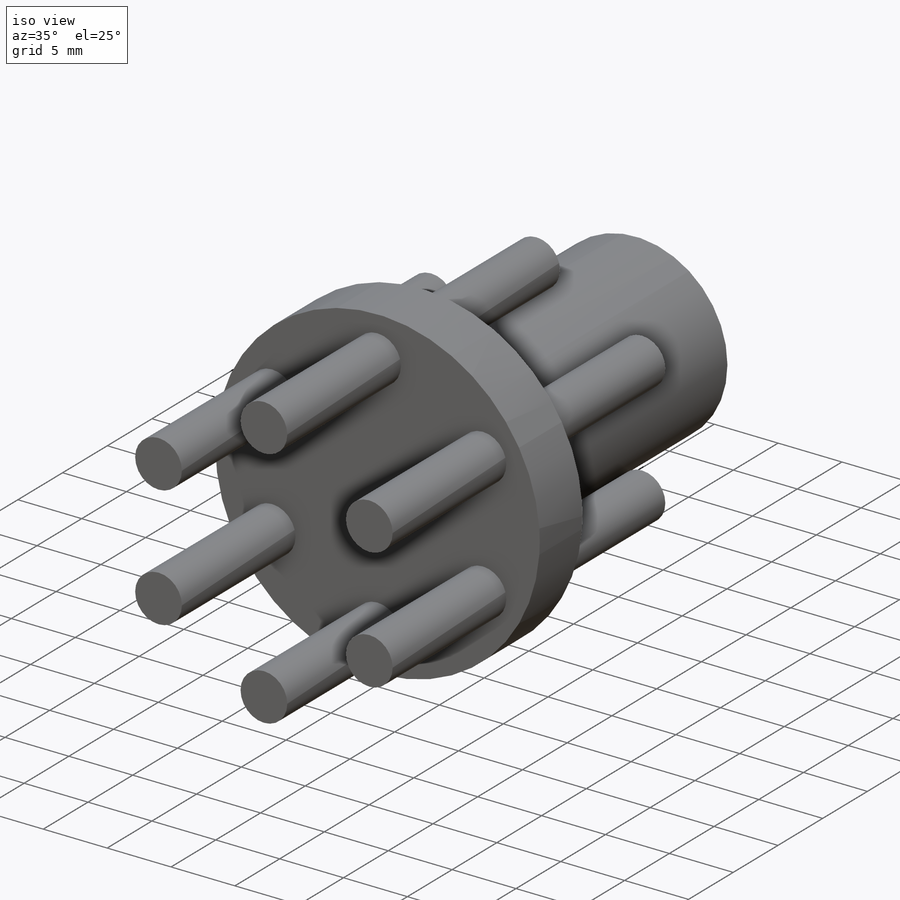
[diagram: iso view]
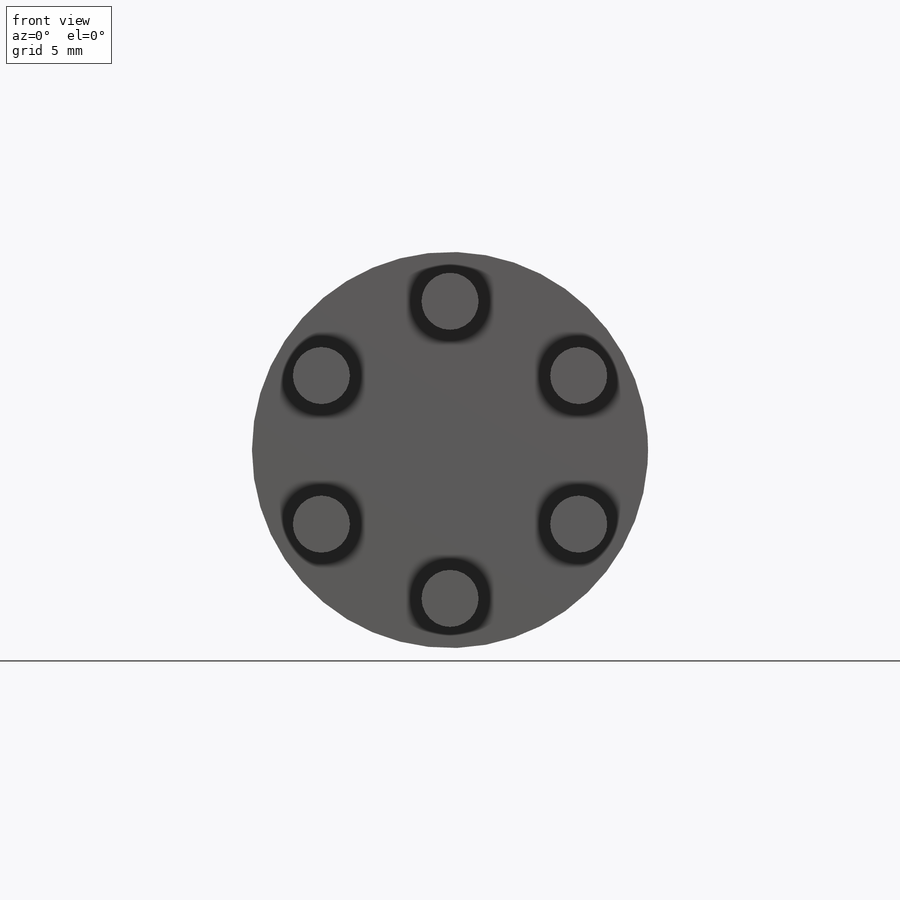
[diagram: front view]
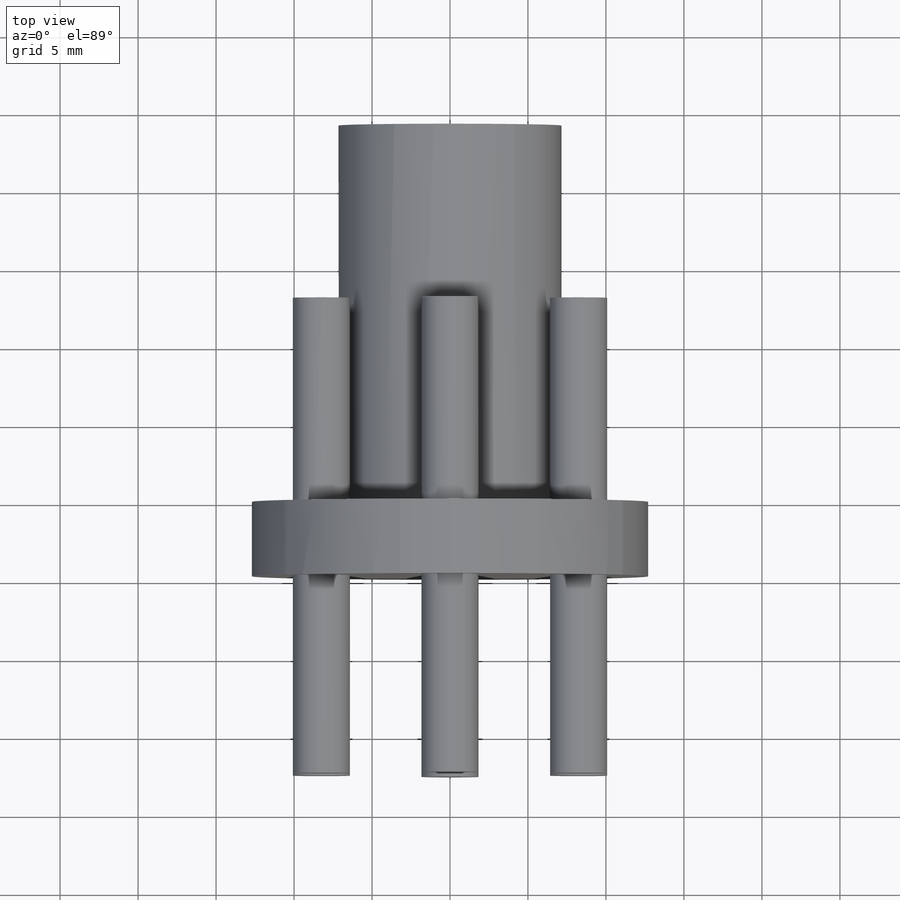
[diagram: top view]
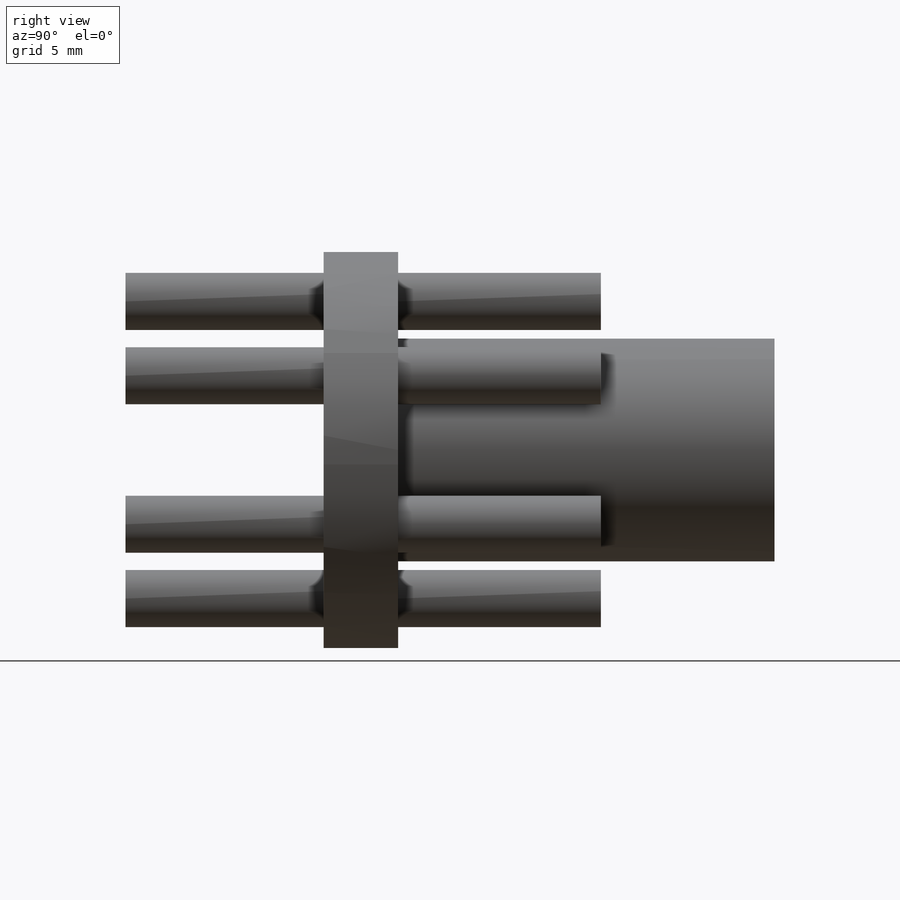
[diagram: right view]
SOLIDWORKS PART (.sldprt)
format: sldprt  version: not decoded by parser v0  size: 207,360 bytes
history: native  units: mm
features: sketch x4, extrude x3, material x1 (+13 scaffold rows collapsed)
feature tree (21):
  scaffold x13  (default folders/planes/origin — collapsed)
  material  "Material <not specified>"
  sketch  "Sketch1"  dims[D1=25.4mm]
  extrude  "Boss-Extrude1"  Depth=4.7752mm
  sketch  "Sketch2"  dims[D1=14.3002mm]
  extrude  "Boss-Extrude2"  Depth=24.13mm
  sketch  "Sketch3"  dims[D1=19.05mm D2=3.6576mm D3=6.0]
  extrude  "Boss-Extrude3"  Depth=12.7mm
  sketch  "Sketch4"
decode coverage: 6 of 7 modeling features carry decoded parameters
note: suppression state not decoded; provenance and decode notes live in map.json
